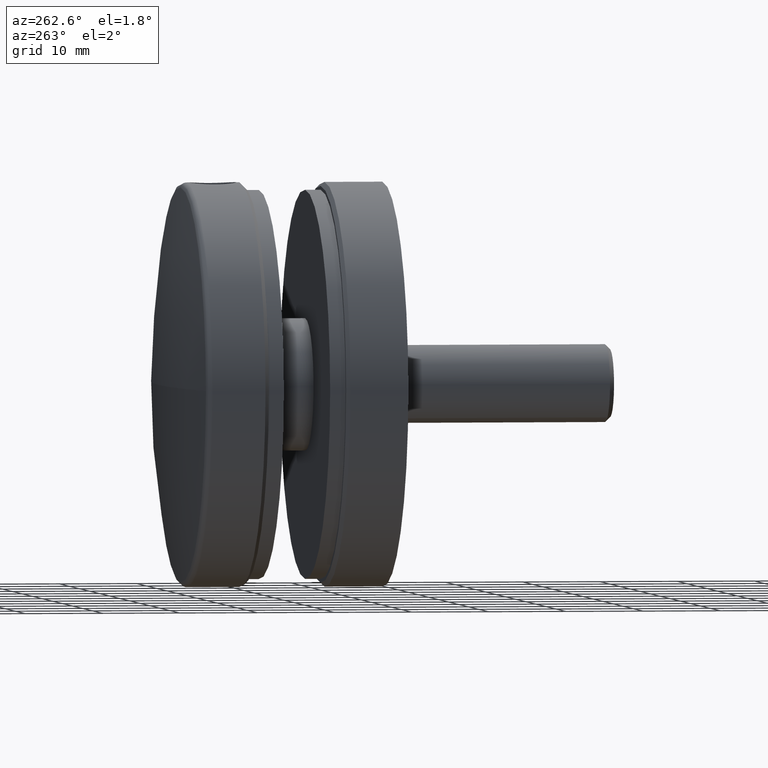
[diagram: clean part render]
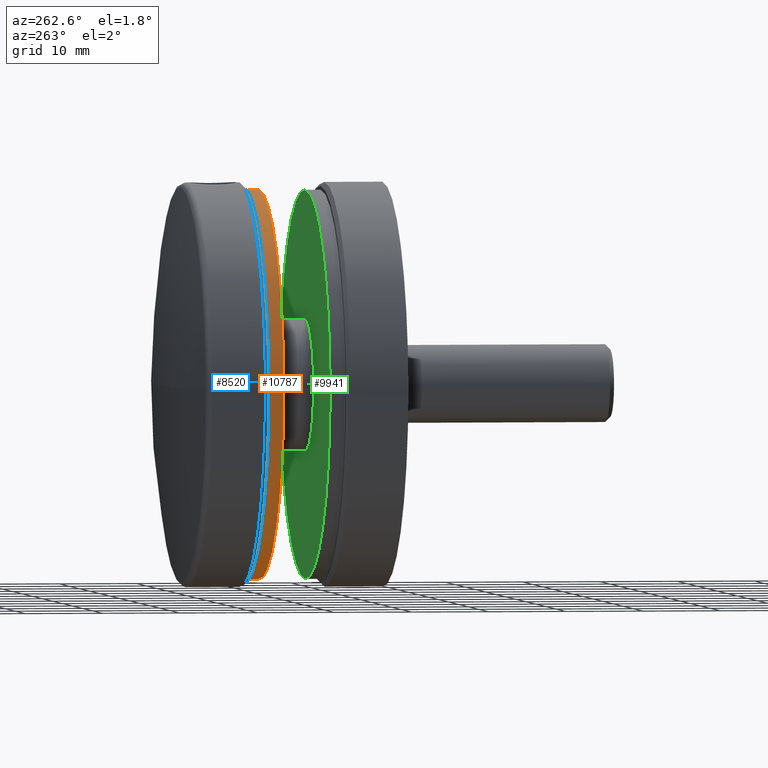
[diagram: same view with three faces highlighted in distinct colors, each labeled with its STEP entity id]
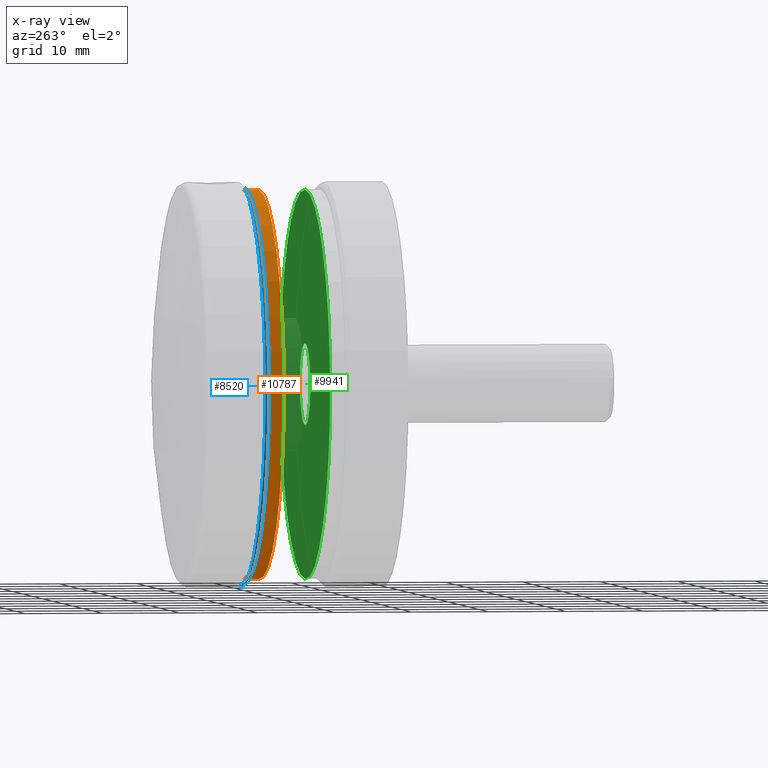
[diagram: x-ray of the same camera — body ghosted, the three highlighted faces saturated]
A machine part, auxiliary view with three faces highlighted in distinct colors.
The next image is the same camera in x-ray (body ghosted, the three faces saturated) — at least one of them is partly hidden behind the body in this view.
Their STEP definitions:

[orange] entity #10787 — the highlighted cylindrical surface (partial cylindrical patch) has radius 25 mm, axis along (0, -1, 0).
#263 = VERTEX_POINT ( 'NONE', #5227 ) ;
#329 = ORIENTED_EDGE ( 'NONE', *, *, #15377, .F. ) ;
#387 = DIRECTION ( 'NONE',  ( -0.000000000000000000, 1.000000000000000000, -0.000000000000000000 ) ) ;
#1796 = DIRECTION ( 'NONE',  ( 0.000000000000000000, 0.000000000000000000, 1.000000000000000000 ) ) ;
#2325 = CARTESIAN_POINT ( 'NONE',  ( 5.457486406938542366E-16, 4.000000000000000000, 25.00000000000000000 ) ) ;
#2339 = CARTESIAN_POINT ( 'NONE',  ( 5.457486406938542366E-16, 4.000000000000000000, 0.000000000000000000 ) ) ;
#2506 = CARTESIAN_POINT ( 'NONE',  ( 5.457486406938542366E-16, -2.000000000000000000, 0.000000000000000000 ) ) ;
#2881 = CIRCLE ( 'NONE', #10664, 25.00000000000000000 ) ;
#2937 = EDGE_LOOP ( 'NONE', ( #7908, #4009, #12372, #329 ) ) ;
#3090 = CYLINDRICAL_SURFACE ( 'NONE', #4224, 25.00000000000000000 ) ;
#4009 = ORIENTED_EDGE ( 'NONE', *, *, #11924, .T. ) ;
#4224 = AXIS2_PLACEMENT_3D ( 'NONE', #2339, #6198, #5112 ) ;
#5112 = DIRECTION ( 'NONE',  ( 0.000000000000000000, 0.000000000000000000, 1.000000000000000000 ) ) ;
#5227 = CARTESIAN_POINT ( 'NONE',  ( 5.457486406938542366E-16, -2.000000000000000000, 25.00000000000000000 ) ) ;
#5848 = CIRCLE ( 'NONE', #8767, 25.00000000000000000 ) ;
#6198 = DIRECTION ( 'NONE',  ( -0.000000000000000000, 1.000000000000000000, -0.000000000000000000 ) ) ;
#6487 = CARTESIAN_POINT ( 'NONE',  ( 5.457486406938542366E-16, -4.000000000000000000, 25.00000000000000000 ) ) ;
#7908 = ORIENTED_EDGE ( 'NONE', *, *, #13856, .T. ) ;
#8048 = CARTESIAN_POINT ( 'NONE',  ( 5.457486406938542366E-16, -4.000000000000000000, 0.000000000000000000 ) ) ;
#8767 = AXIS2_PLACEMENT_3D ( 'NONE', #2506, #14219, #9112 ) ;
#9112 = DIRECTION ( 'NONE',  ( 0.000000000000000000, 0.000000000000000000, 1.000000000000000000 ) ) ;
#10664 = AXIS2_PLACEMENT_3D ( 'NONE', #8048, #387, #1796 ) ;
#10679 = VERTEX_POINT ( 'NONE', #13793 ) ;
#10787 = ADVANCED_FACE ( 'NONE', ( #14933 ), #3090, .T. ) ;
#10837 = VECTOR ( 'NONE', #11309, 1000.000000000000000 ) ;
#11128 = CARTESIAN_POINT ( 'NONE',  ( 3.607365638562237181E-15, 4.000000000000000000, -25.00000000000000000 ) ) ;
#11309 = DIRECTION ( 'NONE',  ( -0.000000000000000000, 1.000000000000000000, -0.000000000000000000 ) ) ;
#11924 = EDGE_CURVE ( 'NONE', #16544, #10679, #13923, .T. ) ;
#12372 = ORIENTED_EDGE ( 'NONE', *, *, #16311, .F. ) ;
#13283 = CARTESIAN_POINT ( 'NONE',  ( 3.607365638562237181E-15, -4.000000000000000000, -25.00000000000000000 ) ) ;
#13424 = VERTEX_POINT ( 'NONE', #6487 ) ;
#13793 = CARTESIAN_POINT ( 'NONE',  ( 3.607365638562237181E-15, -2.000000000000000000, -25.00000000000000000 ) ) ;
#13856 = EDGE_CURVE ( 'NONE', #13424, #16544, #2881, .T. ) ;
#13923 = LINE ( 'NONE', #11128, #16577 ) ;
#14219 = DIRECTION ( 'NONE',  ( -0.000000000000000000, 1.000000000000000000, -0.000000000000000000 ) ) ;
#14487 = LINE ( 'NONE', #2325, #10837 ) ;
#14933 = FACE_OUTER_BOUND ( 'NONE', #2937, .T. ) ;
#15377 = EDGE_CURVE ( 'NONE', #13424, #263, #14487, .T. ) ;
#16170 = DIRECTION ( 'NONE',  ( -0.000000000000000000, 1.000000000000000000, -0.000000000000000000 ) ) ;
#16311 = EDGE_CURVE ( 'NONE', #263, #10679, #5848, .T. ) ;
#16544 = VERTEX_POINT ( 'NONE', #13283 ) ;
#16577 = VECTOR ( 'NONE', #16170, 1000.000000000000000 ) ;

[blue] entity #8520 — the highlighted conical surface has half-angle 45 deg.
#100 = VERTEX_POINT ( 'NONE', #12484 ) ;
#449 = ORIENTED_EDGE ( 'NONE', *, *, #8357, .F. ) ;
#803 = EDGE_LOOP ( 'NONE', ( #3118, #449, #3896, #6702 ) ) ;
#1146 = CARTESIAN_POINT ( 'NONE',  ( 0.000000000000000000, 8.000000000000000000, 0.000000000000000000 ) ) ;
#1209 = CARTESIAN_POINT ( 'NONE',  ( 3.122849337825749433E-15, 8.000000000000000000, -25.49999999999999289 ) ) ;
#1392 = AXIS2_PLACEMENT_3D ( 'NONE', #15208, #5182, #7498 ) ;
#2075 = CARTESIAN_POINT ( 'NONE',  ( 0.000000000000000000, 8.000000000000000000, 25.49999999999999289 ) ) ;
#2082 = CIRCLE ( 'NONE', #8416, 26.00000000000000000 ) ;
#3083 = VERTEX_POINT ( 'NONE', #4511 ) ;
#3118 = ORIENTED_EDGE ( 'NONE', *, *, #9969, .F. ) ;
#3337 = CONICAL_SURFACE ( 'NONE', #14386, 25.49999999999999289, 0.7853981633974380649 ) ;
#3896 = ORIENTED_EDGE ( 'NONE', *, *, #5336, .T. ) ;
#4511 = CARTESIAN_POINT ( 'NONE',  ( 3.153465507804433615E-15, 8.000000000000000000, -25.49999999999999289 ) ) ;
#5101 = DIRECTION ( 'NONE',  ( 0.000000000000000000, 0.000000000000000000, 1.000000000000000000 ) ) ;
#5182 = DIRECTION ( 'NONE',  ( -0.000000000000000000, -1.000000000000000000, -0.000000000000000000 ) ) ;
#5336 = EDGE_CURVE ( 'NONE', #100, #10359, #13983, .T. ) ;
#5578 = CARTESIAN_POINT ( 'NONE',  ( 0.000000000000000000, 8.500000000000017764, 0.000000000000000000 ) ) ;
#6312 = DIRECTION ( 'NONE',  ( 0.000000000000000000, 1.000000000000000000, 0.000000000000000000 ) ) ;
#6699 = DIRECTION ( 'NONE',  ( 0.000000000000000000, 0.000000000000000000, -1.000000000000000000 ) ) ;
#6702 = ORIENTED_EDGE ( 'NONE', *, *, #13126, .F. ) ;
#7498 = DIRECTION ( 'NONE',  ( 0.000000000000000000, 0.000000000000000000, -1.000000000000000000 ) ) ;
#8117 = DIRECTION ( 'NONE',  ( 0.000000000000000000, 1.000000000000000000, 0.000000000000000000 ) ) ;
#8357 = EDGE_CURVE ( 'NONE', #100, #3083, #11732, .T. ) ;
#8416 = AXIS2_PLACEMENT_3D ( 'NONE', #5578, #8117, #6699 ) ;
#8520 = ADVANCED_FACE ( 'NONE', ( #11532 ), #3337, .T. ) ;
#8874 = VERTEX_POINT ( 'NONE', #10215 ) ;
#8974 = VECTOR ( 'NONE', #12133, 1000.000000000000114 ) ;
#9489 = VECTOR ( 'NONE', #16365, 1000.000000000000114 ) ;
#9969 = EDGE_CURVE ( 'NONE', #3083, #8874, #13510, .T. ) ;
#10215 = CARTESIAN_POINT ( 'NONE',  ( 0.000000000000000000, 8.500000000000017764, -26.00000000000000000 ) ) ;
#10359 = VERTEX_POINT ( 'NONE', #13812 ) ;
#11532 = FACE_OUTER_BOUND ( 'NONE', #803, .T. ) ;
#11732 = CIRCLE ( 'NONE', #1392, 25.49999999999999289 ) ;
#12133 = DIRECTION ( 'NONE',  ( 0.000000000000000000, 0.7071067811865549002, 0.7071067811865402453 ) ) ;
#12484 = CARTESIAN_POINT ( 'NONE',  ( 0.000000000000000000, 8.000000000000000000, 25.49999999999999289 ) ) ;
#13126 = EDGE_CURVE ( 'NONE', #8874, #10359, #2082, .T. ) ;
#13510 = LINE ( 'NONE', #1209, #9489 ) ;
#13812 = CARTESIAN_POINT ( 'NONE',  ( 3.184081677783118191E-15, 8.500000000000017764, 26.00000000000000000 ) ) ;
#13983 = LINE ( 'NONE', #2075, #8974 ) ;
#14386 = AXIS2_PLACEMENT_3D ( 'NONE', #1146, #6312, #5101 ) ;
#15208 = CARTESIAN_POINT ( 'NONE',  ( 0.000000000000000000, 8.000000000000000000, 0.000000000000000000 ) ) ;
#16365 = DIRECTION ( 'NONE',  ( 8.659560562354844111E-17, 0.7071067811865549002, -0.7071067811865402453 ) ) ;

[green] entity #9941 — the highlighted planar face has unit normal (0, 1, 0).
#82 = CIRCLE ( 'NONE', #4252, 25.00000000000000000 ) ;
#371 = VERTEX_POINT ( 'NONE', #15760 ) ;
#476 = DIRECTION ( 'NONE',  ( 0.000000000000000000, 1.000000000000000000, 0.000000000000000000 ) ) ;
#1078 = FACE_BOUND ( 'NONE', #13805, .T. ) ;
#1536 = CARTESIAN_POINT ( 'NONE',  ( 6.429395695523604153E-16, 1.000000000000000000, 5.250000000000000000 ) ) ;
#1792 = EDGE_CURVE ( 'NONE', #371, #3860, #12127, .T. ) ;
#1998 = CARTESIAN_POINT ( 'NONE',  ( 0.000000000000000000, 1.000000000000000000, 0.000000000000000000 ) ) ;
#2180 = CARTESIAN_POINT ( 'NONE',  ( 0.000000000000000000, 1.000000000000000000, -25.00000000000000000 ) ) ;
#2451 = PLANE ( 'NONE',  #8823 ) ;
#2606 = AXIS2_PLACEMENT_3D ( 'NONE', #9976, #11091, #4747 ) ;
#2859 = CARTESIAN_POINT ( 'NONE',  ( 0.000000000000000000, 1.000000000000000000, 0.000000000000000000 ) ) ;
#3860 = VERTEX_POINT ( 'NONE', #1536 ) ;
#4252 = AXIS2_PLACEMENT_3D ( 'NONE', #2859, #7513, #10245 ) ;
#4530 = CARTESIAN_POINT ( 'NONE',  ( 3.061616997868383043E-15, 1.000000000000000000, 25.00000000000000000 ) ) ;
#4747 = DIRECTION ( 'NONE',  ( 0.000000000000000000, 0.000000000000000000, 1.000000000000000000 ) ) ;
#4889 = VERTEX_POINT ( 'NONE', #4530 ) ;
#5099 = AXIS2_PLACEMENT_3D ( 'NONE', #11168, #12428, #9939 ) ;
#6106 = CIRCLE ( 'NONE', #2606, 25.00000000000000000 ) ;
#6207 = ORIENTED_EDGE ( 'NONE', *, *, #11501, .T. ) ;
#6570 = ORIENTED_EDGE ( 'NONE', *, *, #1792, .F. ) ;
#6887 = AXIS2_PLACEMENT_3D ( 'NONE', #1998, #476, #7149 ) ;
#7149 = DIRECTION ( 'NONE',  ( 0.000000000000000000, 0.000000000000000000, 1.000000000000000000 ) ) ;
#7305 = FACE_OUTER_BOUND ( 'NONE', #9196, .T. ) ;
#7372 = DIRECTION ( 'NONE',  ( 0.000000000000000000, 1.000000000000000000, 0.000000000000000000 ) ) ;
#7513 = DIRECTION ( 'NONE',  ( 0.000000000000000000, 1.000000000000000000, 0.000000000000000000 ) ) ;
#8645 = DIRECTION ( 'NONE',  ( 0.000000000000000000, -0.000000000000000000, 1.000000000000000000 ) ) ;
#8823 = AXIS2_PLACEMENT_3D ( 'NONE', #16482, #7372, #8645 ) ;
#9196 = EDGE_LOOP ( 'NONE', ( #11165, #6207 ) ) ;
#9939 = DIRECTION ( 'NONE',  ( 0.000000000000000000, 0.000000000000000000, 1.000000000000000000 ) ) ;
#9941 = ADVANCED_FACE ( 'NONE', ( #7305, #1078 ), #2451, .T. ) ;
#9976 = CARTESIAN_POINT ( 'NONE',  ( 0.000000000000000000, 1.000000000000000000, 0.000000000000000000 ) ) ;
#10245 = DIRECTION ( 'NONE',  ( 0.000000000000000000, 0.000000000000000000, 1.000000000000000000 ) ) ;
#10859 = ORIENTED_EDGE ( 'NONE', *, *, #11392, .F. ) ;
#11091 = DIRECTION ( 'NONE',  ( 0.000000000000000000, 1.000000000000000000, 0.000000000000000000 ) ) ;
#11165 = ORIENTED_EDGE ( 'NONE', *, *, #12416, .T. ) ;
#11168 = CARTESIAN_POINT ( 'NONE',  ( 0.000000000000000000, 1.000000000000000000, 0.000000000000000000 ) ) ;
#11392 = EDGE_CURVE ( 'NONE', #3860, #371, #11719, .T. ) ;
#11501 = EDGE_CURVE ( 'NONE', #4889, #14238, #6106, .T. ) ;
#11719 = CIRCLE ( 'NONE', #5099, 5.250000000000000000 ) ;
#12127 = CIRCLE ( 'NONE', #6887, 5.250000000000000000 ) ;
#12416 = EDGE_CURVE ( 'NONE', #14238, #4889, #82, .T. ) ;
#12428 = DIRECTION ( 'NONE',  ( 0.000000000000000000, 1.000000000000000000, 0.000000000000000000 ) ) ;
#13805 = EDGE_LOOP ( 'NONE', ( #6570, #10859 ) ) ;
#14238 = VERTEX_POINT ( 'NONE', #2180 ) ;
#15760 = CARTESIAN_POINT ( 'NONE',  ( 0.000000000000000000, 1.000000000000000000, -5.250000000000000000 ) ) ;
#16482 = CARTESIAN_POINT ( 'NONE',  ( 0.000000000000000000, 1.000000000000000000, 0.000000000000000000 ) ) ;